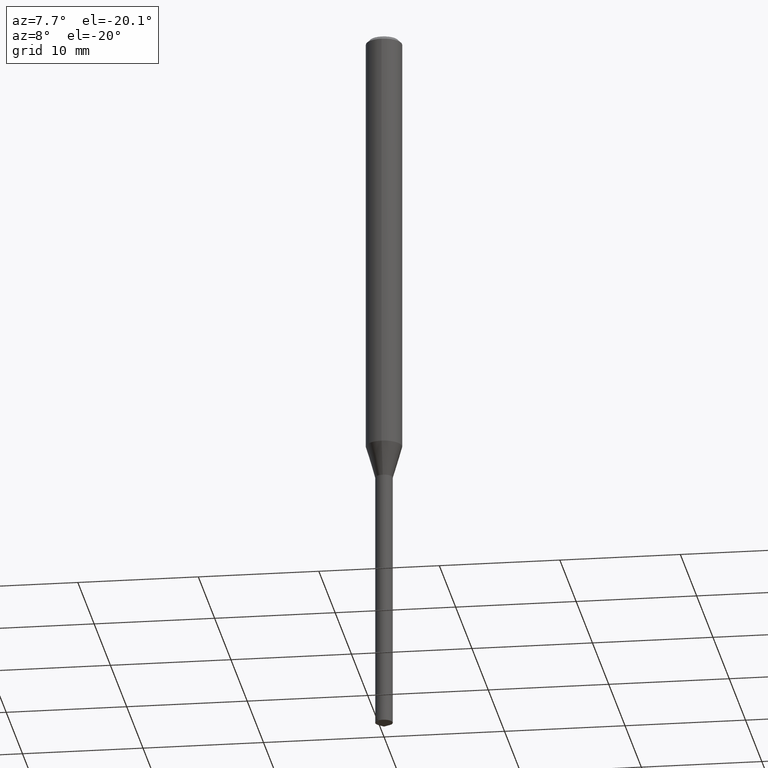
[diagram: clean part render]
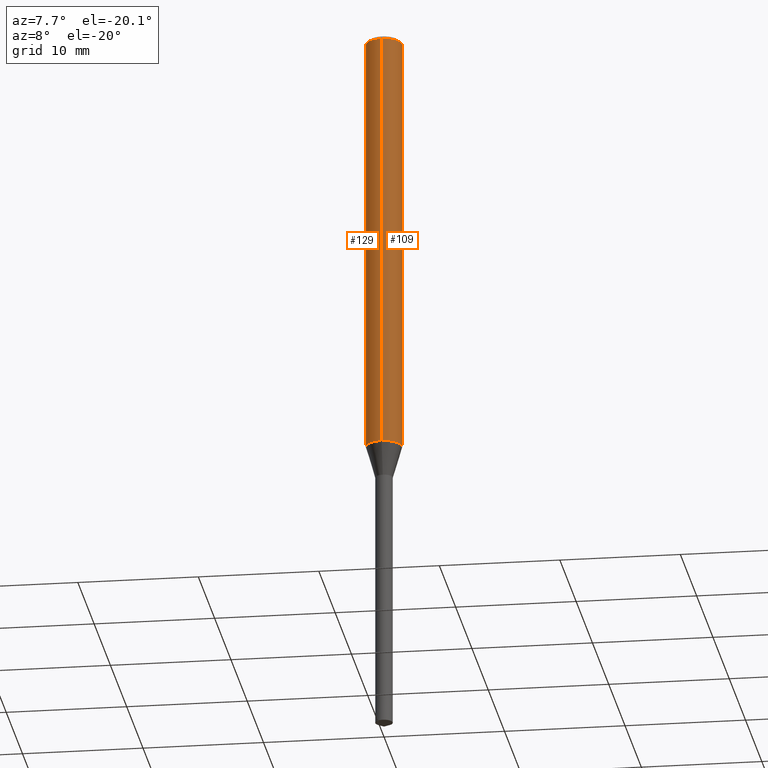
[diagram: same view with one multi-face feature highlighted, each face labeled with its STEP entity id]
A machine part, auxiliary view. The highlighted faces form ONE feature: a constant-radius fillet chain: 2 tangent blend faces with common blend radius 1.5 mm. The faces share edges in the B-rep.
Their STEP definitions:
[1] entity #129 (Cylinder):
#101=EDGE_CURVE('',#159,#115,#238,.T.);
#113=VERTEX_POINT('',#251);
#115=VERTEX_POINT('',#253);
#129=ADVANCED_FACE('',(#267),#268,.T.);
#145=EDGE_CURVE('',#147,#113,#285,.T.);
#147=VERTEX_POINT('',#287);
#159=VERTEX_POINT('',#301);
#181=EDGE_CURVE('',#115,#147,#326,.T.);
#183=EDGE_CURVE('',#159,#113,#328,.T.);
#238=LINE('',#386,#387);
#251=CARTESIAN_POINT('',(0.0,1.5,-35.497));
#253=CARTESIAN_POINT('',(1.83690953073357E-016,-1.5,-0.299999999999997));
#267=FACE_OUTER_BOUND('',#422,.T.);
#268=CYLINDRICAL_SURFACE('',#423,1.5);
#285=LINE('',#446,#447);
#287=CARTESIAN_POINT('',(0.0,1.5,-0.299999999999997));
#301=CARTESIAN_POINT('',(1.83690953073357E-016,-1.5,-35.497));
#326=CIRCLE('',#496,1.5);
#328=CIRCLE('',#499,1.5);
#386=CARTESIAN_POINT('',(1.83690953073357E-016,-1.5,-17.8985));
#387=VECTOR('',#554,1.0);
#422=EDGE_LOOP('',(#581,#582,#583,#584));
#423=AXIS2_PLACEMENT_3D('',#585,#586,#587);
#446=CARTESIAN_POINT('',(-1.83690953073357E-016,1.5,-17.8985));
#447=VECTOR('',#604,1.0);
#496=AXIS2_PLACEMENT_3D('',#649,#650,#651);
#499=AXIS2_PLACEMENT_3D('',#652,#653,#654);
#554=DIRECTION('',(-0.0,-0.0,1.0));
#581=ORIENTED_EDGE('',*,*,#145,.T.);
#582=ORIENTED_EDGE('',*,*,#183,.F.);
#583=ORIENTED_EDGE('',*,*,#101,.T.);
#584=ORIENTED_EDGE('',*,*,#181,.T.);
#585=CARTESIAN_POINT('',(0.0,0.0,-17.8985));
#586=DIRECTION('',(-0.0,-0.0,1.0));
#587=DIRECTION('',(0.0,1.0,0.0));
#604=DIRECTION('',(0.0,0.0,-1.0));
#649=CARTESIAN_POINT('',(0.0,0.0,-0.299999999999997));
#650=DIRECTION('',(0.0,0.0,-1.0));
#651=DIRECTION('',(0.0,1.0,0.0));
#652=CARTESIAN_POINT('',(0.0,0.0,-35.497));
#653=DIRECTION('',(0.0,0.0,-1.0));
#654=DIRECTION('',(0.0,1.0,0.0));
[2] entity #109 (Cylinder):
#101=EDGE_CURVE('',#159,#115,#238,.T.);
#109=ADVANCED_FACE('',(#246),#247,.T.);
#113=VERTEX_POINT('',#251);
#115=VERTEX_POINT('',#253);
#141=EDGE_CURVE('',#113,#159,#281,.T.);
#145=EDGE_CURVE('',#147,#113,#285,.T.);
#147=VERTEX_POINT('',#287);
#159=VERTEX_POINT('',#301);
#185=EDGE_CURVE('',#147,#115,#330,.T.);
#238=LINE('',#386,#387);
#246=FACE_OUTER_BOUND('',#398,.T.);
#247=CYLINDRICAL_SURFACE('',#399,1.5);
#251=CARTESIAN_POINT('',(0.0,1.5,-35.497));
#253=CARTESIAN_POINT('',(1.83690953073357E-016,-1.5,-0.299999999999997));
#281=CIRCLE('',#439,1.5);
#285=LINE('',#446,#447);
#287=CARTESIAN_POINT('',(0.0,1.5,-0.299999999999997));
#301=CARTESIAN_POINT('',(1.83690953073357E-016,-1.5,-35.497));
#330=CIRCLE('',#502,1.5);
#386=CARTESIAN_POINT('',(1.83690953073357E-016,-1.5,-17.8985));
#387=VECTOR('',#554,1.0);
#398=EDGE_LOOP('',(#560,#561,#562,#563));
#399=AXIS2_PLACEMENT_3D('',#564,#565,#566);
#439=AXIS2_PLACEMENT_3D('',#600,#601,#602);
#446=CARTESIAN_POINT('',(-1.83690953073357E-016,1.5,-17.8985));
#447=VECTOR('',#604,1.0);
#502=AXIS2_PLACEMENT_3D('',#655,#656,#657);
#554=DIRECTION('',(-0.0,-0.0,1.0));
#560=ORIENTED_EDGE('',*,*,#145,.F.);
#561=ORIENTED_EDGE('',*,*,#185,.T.);
#562=ORIENTED_EDGE('',*,*,#101,.F.);
#563=ORIENTED_EDGE('',*,*,#141,.F.);
#564=CARTESIAN_POINT('',(0.0,0.0,-17.8985));
#565=DIRECTION('',(-0.0,-0.0,1.0));
#566=DIRECTION('',(0.0,1.0,0.0));
#600=CARTESIAN_POINT('',(0.0,0.0,-35.497));
#601=DIRECTION('',(0.0,0.0,-1.0));
#602=DIRECTION('',(0.0,1.0,0.0));
#604=DIRECTION('',(0.0,0.0,-1.0));
#655=CARTESIAN_POINT('',(0.0,0.0,-0.299999999999997));
#656=DIRECTION('',(0.0,0.0,-1.0));
#657=DIRECTION('',(0.0,1.0,0.0));